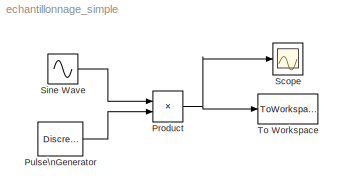
MODEL echantillonnage_simple
KIND model
BLOCK [Product] Product
  InputSameDT = off
  OutDataTypeMode = Inherit via internal rule
  Ports = [2, 1]
  SampleTime = 0
  SaturateOnIntegerOverflow = off
BLOCK [DiscretePulseGenerator] Pulse\nGenerator
  Period = 1000
  Ports = [0, 1]
  PulseWidth = 200
  SampleTime = ts
BLOCK [Scope] Scope
  DataFormat = StructureWithTime
  LimitDataPoints = off
  NumInputPorts = 1
  Ports = [1]
  YMax = 1.5
  YMin = -1.5
  ZoomMode = xonly
BLOCK [Sin] Sine Wave
  Frequency = 2*pi*100
  Ports = [0, 1]
  SampleTime = ts
  SineType = Time based
BLOCK [ToWorkspace] To Workspace
  MaxDataPoints = inf
  SampleTime = ts
  SaveFormat = Array
  VariableName = simout
NET Product:1 -> Scope:1, To Workspace:1
LINE Pulse\nGenerator:1 -> Product:2
LINE Sine Wave:1 -> Product:1
note: NET lines group one-source signal fan-out (src -> all destinations, sorted); 1:1 wires keep LINE
